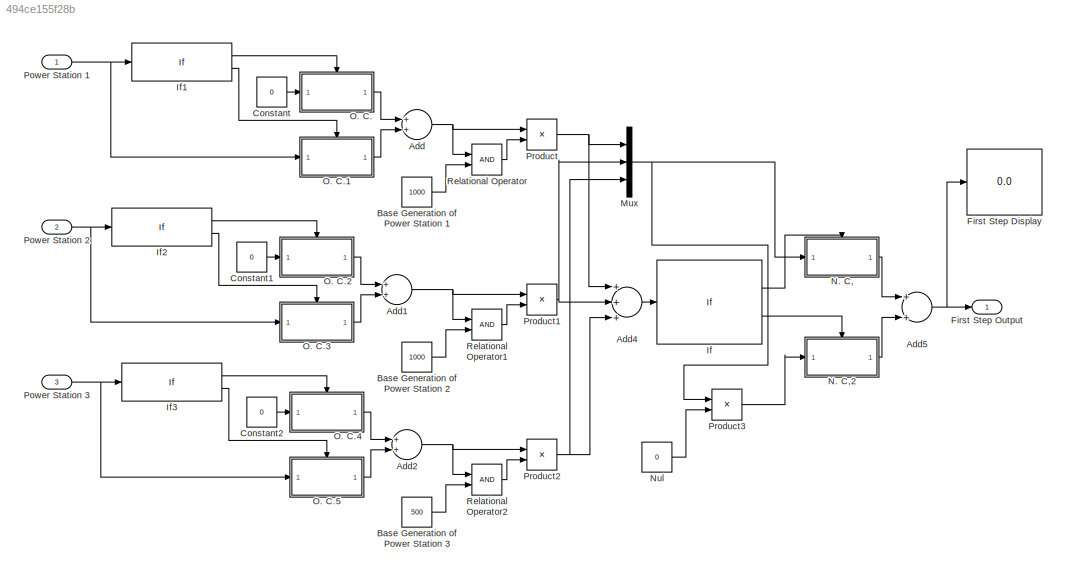
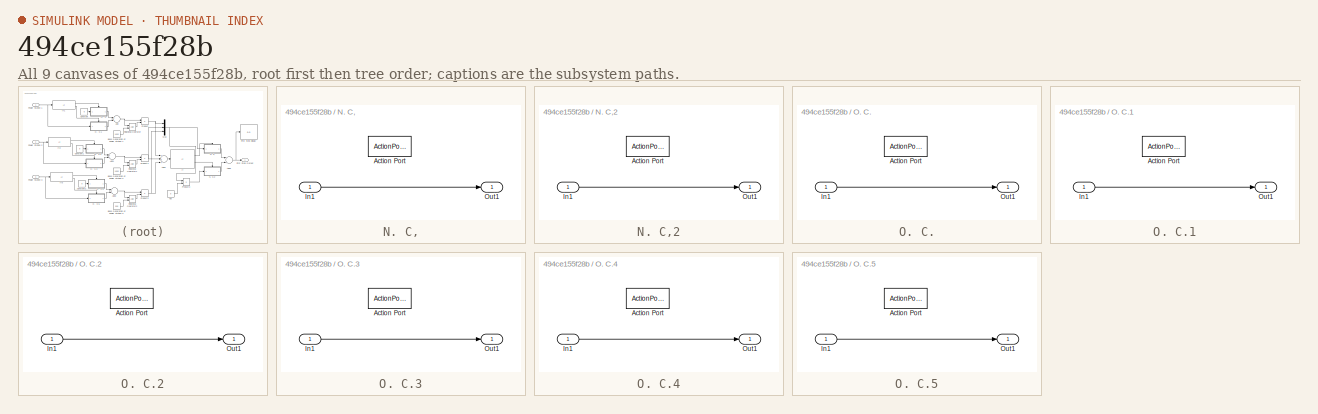
[diagram: thumbnail index - all 9 canvases of the model, root first then tree order]
MODEL slx_494ce155f28b
KIND model
BLOCK [Sum] Add
  InputSameDT = off
  OutDataTypeStr = Inherit: Inherit via internal rule
  Ports = [2, 1]
  SaturateOnIntegerOverflow = off
BLOCK [Sum] Add1
  InputSameDT = off
  OutDataTypeStr = Inherit: Inherit via internal rule
  Ports = [2, 1]
  SaturateOnIntegerOverflow = off
BLOCK [Sum] Add2
  InputSameDT = off
  OutDataTypeStr = Inherit: Inherit via internal rule
  Ports = [2, 1]
  SaturateOnIntegerOverflow = off
BLOCK [Sum] Add4
  InputSameDT = off
  Inputs = +++
  OutDataTypeStr = Inherit: Inherit via internal rule
  Ports = [3, 1]
  SaturateOnIntegerOverflow = off
BLOCK [Sum] Add5
  InputSameDT = off
  OutDataTypeStr = Inherit: Inherit via internal rule
  Ports = [2, 1]
  SaturateOnIntegerOverflow = off
BLOCK [Constant] Base Generation of Power Station 1
  Value = 1000
BLOCK [Constant] Base Generation of Power Station 2
  Value = 1000
BLOCK [Constant] Base Generation of Power Station 3
  Value = 500
BLOCK [Constant] Constant
  Value = 0
BLOCK [Constant] Constant1
  Value = 0
BLOCK [Constant] Constant2
  Value = 0
BLOCK [Display] First Step Display
  Decimation = 1
  Lockdown = off
  Ports = [1]
BLOCK [Outport] First Step Output
  IconDisplay = Port number
BLOCK [If] If
  IfExpression = u1 <= 4000 & u1>=2500
  Ports = [1, 2]
BLOCK [If] If1
  IfExpression = u1 > 1500
  Ports = [1, 2]
BLOCK [If] If2
  IfExpression = u1 > 1500
  Ports = [1, 2]
BLOCK [If] If3
  IfExpression = u1 > 1000
  Ports = [1, 2]
BLOCK [Mux] Mux
  DisplayOption = bar
  Inputs = 3
  Ports = [3, 1]
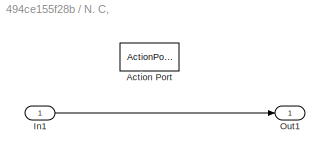
BLOCK [SubSystem] N. C,
  FunctionWithSeparateData = off
  MaskHideContents = off
  MinAlgLoopOccurrences = off
  Opaque = off
  Ports = [1, 1, 0, 0, 0, 0, 0, 1]
  PropExecContextOutsideSubsystem = off
  RTWSystemCode = Auto
  RequestExecContextInheritance = off
  TreatAsAtomicUnit = on
BLOCK [ActionPort] N. C,/Action Port
  ActionType = then
BLOCK [Inport] N. C,/In1
  IconDisplay = Port number
BLOCK [Outport] N. C,/Out1
  IconDisplay = Port number
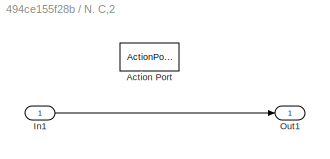
BLOCK [SubSystem] N. C,2
  FunctionWithSeparateData = off
  MaskHideContents = off
  MinAlgLoopOccurrences = off
  Opaque = off
  Ports = [1, 1, 0, 0, 0, 0, 0, 1]
  PropExecContextOutsideSubsystem = off
  RTWSystemCode = Auto
  RequestExecContextInheritance = off
  TreatAsAtomicUnit = on
BLOCK [ActionPort] N. C,2/Action Port
  ActionType = else
BLOCK [Inport] N. C,2/In1
  IconDisplay = Port number
BLOCK [Outport] N. C,2/Out1
  IconDisplay = Port number
BLOCK [Constant] Nul
  Value = 0
BLOCK [SubSystem] O. C.
  FunctionWithSeparateData = off
  MaskHideContents = off
  MinAlgLoopOccurrences = off
  Opaque = off
  Ports = [1, 1, 0, 0, 0, 0, 0, 1]
  PropExecContextOutsideSubsystem = off
  RTWSystemCode = Auto
  RequestExecContextInheritance = off
  TreatAsAtomicUnit = on
BLOCK [ActionPort] O. C./Action Port
  ActionType = then
BLOCK [Inport] O. C./In1
  IconDisplay = Port number
BLOCK [Outport] O. C./Out1
  IconDisplay = Port number
BLOCK [SubSystem] O. C.1
  FunctionWithSeparateData = off
  MaskHideContents = off
  MinAlgLoopOccurrences = off
  Opaque = off
  Ports = [1, 1, 0, 0, 0, 0, 0, 1]
  PropExecContextOutsideSubsystem = off
  RTWSystemCode = Auto
  RequestExecContextInheritance = off
  TreatAsAtomicUnit = on
BLOCK [ActionPort] O. C.1/Action Port
  ActionType = else
BLOCK [Inport] O. C.1/In1
  IconDisplay = Port number
BLOCK [Outport] O. C.1/Out1
  IconDisplay = Port number
BLOCK [SubSystem] O. C.2
  FunctionWithSeparateData = off
  MaskHideContents = off
  MinAlgLoopOccurrences = off
  Opaque = off
  Ports = [1, 1, 0, 0, 0, 0, 0, 1]
  PropExecContextOutsideSubsystem = off
  RTWSystemCode = Auto
  RequestExecContextInheritance = off
  TreatAsAtomicUnit = on
BLOCK [ActionPort] O. C.2/Action Port
  ActionType = then
BLOCK [Inport] O. C.2/In1
  IconDisplay = Port number
BLOCK [Outport] O. C.2/Out1
  IconDisplay = Port number
BLOCK [SubSystem] O. C.3
  FunctionWithSeparateData = off
  MaskHideContents = off
  MinAlgLoopOccurrences = off
  Opaque = off
  Ports = [1, 1, 0, 0, 0, 0, 0, 1]
  PropExecContextOutsideSubsystem = off
  RTWSystemCode = Auto
  RequestExecContextInheritance = off
  TreatAsAtomicUnit = on
BLOCK [ActionPort] O. C.3/Action Port
  ActionType = else
BLOCK [Inport] O. C.3/In1
  IconDisplay = Port number
BLOCK [Outport] O. C.3/Out1
  IconDisplay = Port number
BLOCK [SubSystem] O. C.4
  FunctionWithSeparateData = off
  MaskHideContents = off
  MinAlgLoopOccurrences = off
  Opaque = off
  Ports = [1, 1, 0, 0, 0, 0, 0, 1]
  PropExecContextOutsideSubsystem = off
  RTWSystemCode = Auto
  RequestExecContextInheritance = off
  TreatAsAtomicUnit = on
BLOCK [ActionPort] O. C.4/Action Port
  ActionType = then
BLOCK [Inport] O. C.4/In1
  IconDisplay = Port number
BLOCK [Outport] O. C.4/Out1
  IconDisplay = Port number
BLOCK [SubSystem] O. C.5
  FunctionWithSeparateData = off
  MaskHideContents = off
  MinAlgLoopOccurrences = off
  Opaque = off
  Ports = [1, 1, 0, 0, 0, 0, 0, 1]
  PropExecContextOutsideSubsystem = off
  RTWSystemCode = Auto
  RequestExecContextInheritance = off
  TreatAsAtomicUnit = on
BLOCK [ActionPort] O. C.5/Action Port
  ActionType = else
BLOCK [Inport] O. C.5/In1
  IconDisplay = Port number
BLOCK [Outport] O. C.5/Out1
  IconDisplay = Port number
BLOCK [Inport] Power Station 1
  IconDisplay = Port number
BLOCK [Inport] Power Station 2
  IconDisplay = Port number
  Port = 2
BLOCK [Inport] Power Station 3
  IconDisplay = Port number
  Port = 3
BLOCK [Product] Product
  InputSameDT = off
  OutDataTypeStr = Inherit: Inherit via internal rule
  Ports = [2, 1]
  RndMeth = Floor
  SaturateOnIntegerOverflow = off
BLOCK [Product] Product1
  InputSameDT = off
  OutDataTypeStr = Inherit: Inherit via internal rule
  Ports = [2, 1]
  RndMeth = Floor
  SaturateOnIntegerOverflow = off
BLOCK [Product] Product2
  InputSameDT = off
  OutDataTypeStr = Inherit: Inherit via internal rule
  Ports = [2, 1]
  RndMeth = Floor
  SaturateOnIntegerOverflow = off
BLOCK [Product] Product3
  InputSameDT = off
  OutDataTypeStr = Inherit: Inherit via internal rule
  Ports = [2, 1]
  RndMeth = Floor
  SaturateOnIntegerOverflow = off
BLOCK [RelationalOperator] Relational Operator
  InputSameDT = off
  OutDataTypeStr = boolean
  Ports = [2, 1]
BLOCK [RelationalOperator] Relational Operator1
  InputSameDT = off
  OutDataTypeStr = boolean
  Ports = [2, 1]
BLOCK [RelationalOperator] Relational Operator2
  InputSameDT = off
  OutDataTypeStr = boolean
  Ports = [2, 1]
NET Add1:1 -> Product1:1, Relational Operator1:1
NET Add2:1 -> Product2:1, Relational Operator2:1
LINE Add4:1 -> If:1
NET Add5:1 -> First Step Display:1, First Step Output:1
NET Add:1 -> Product:1, Relational Operator:1
LINE Base Generation of Power Station 1:1 -> Relational Operator:2
LINE Base Generation of Power Station 2:1 -> Relational Operator1:2
LINE Base Generation of Power Station 3:1 -> Relational Operator2:2
LINE Constant1:1 -> O. C.2:1
LINE Constant2:1 -> O. C.4:1
LINE Constant:1 -> O. C.:1
LINE If1:1 -> O. C.:ifaction
LINE If1:2 -> O. C.1:ifaction
LINE If2:1 -> O. C.2:ifaction
LINE If2:2 -> O. C.3:ifaction
LINE If3:1 -> O. C.4:ifaction
LINE If3:2 -> O. C.5:ifaction
LINE If:1 -> N. C,:ifaction
LINE If:2 -> N. C,2:ifaction
NET Mux:1 -> N. C,:1, Product3:1
LINE N. C,/In1:1 -> N. C,/Out1:1
LINE N. C,2/In1:1 -> N. C,2/Out1:1
LINE N. C,2:1 -> Add5:2
LINE N. C,:1 -> Add5:1
LINE Nul:1 -> Product3:2
LINE O. C./In1:1 -> O. C./Out1:1
LINE O. C.1/In1:1 -> O. C.1/Out1:1
LINE O. C.1:1 -> Add:2
LINE O. C.2/In1:1 -> O. C.2/Out1:1
LINE O. C.2:1 -> Add1:1
LINE O. C.3/In1:1 -> O. C.3/Out1:1
LINE O. C.3:1 -> Add1:2
LINE O. C.4/In1:1 -> O. C.4/Out1:1
LINE O. C.4:1 -> Add2:1
LINE O. C.5/In1:1 -> O. C.5/Out1:1
LINE O. C.5:1 -> Add2:2
LINE O. C.:1 -> Add:1
NET Power Station 1:1 -> If1:1, O. C.1:1
NET Power Station 2:1 -> If2:1, O. C.3:1
NET Power Station 3:1 -> If3:1, O. C.5:1
NET Product1:1 -> Add4:2, Mux:2
NET Product2:1 -> Add4:3, Mux:3
LINE Product3:1 -> N. C,2:1
NET Product:1 -> Add4:1, Mux:1
LINE Relational Operator1:1 -> Product1:2
LINE Relational Operator2:1 -> Product2:2
LINE Relational Operator:1 -> Product:2
note: NET lines group one-source signal fan-out (src -> all destinations, sorted); 1:1 wires keep LINE
